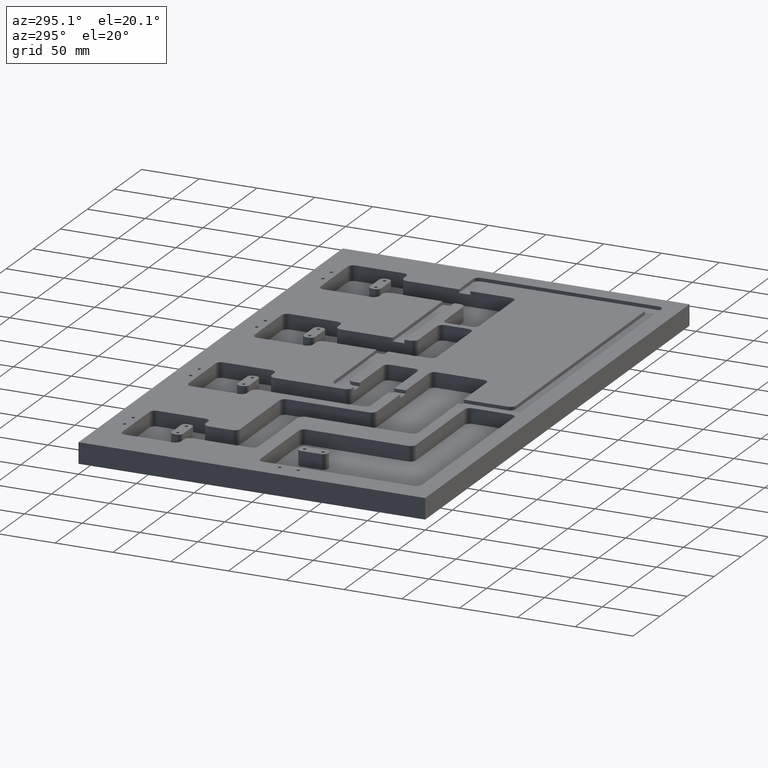
[diagram: clean part render]
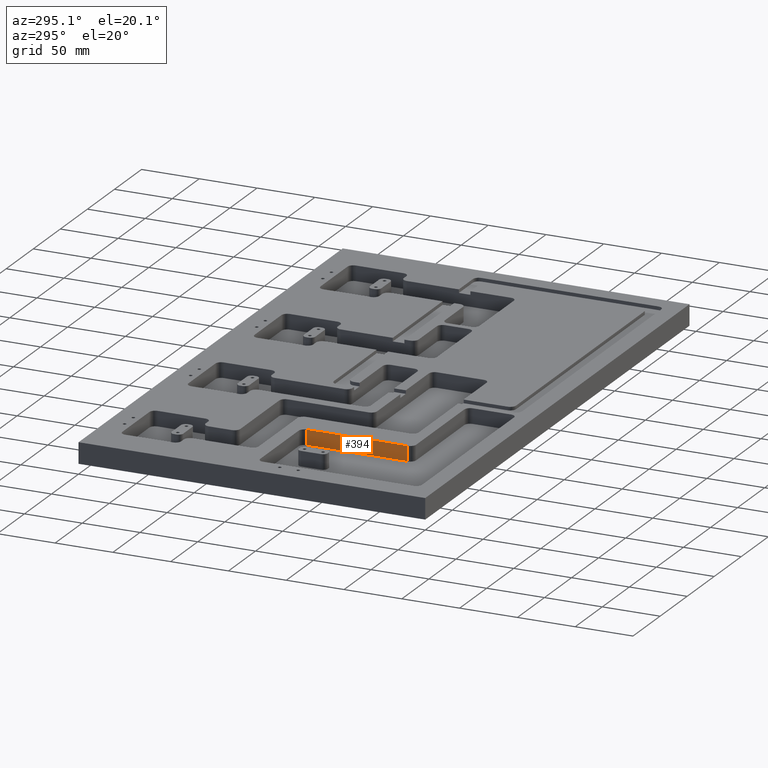
[diagram: same view with one face highlighted and labeled with its STEP entity id]
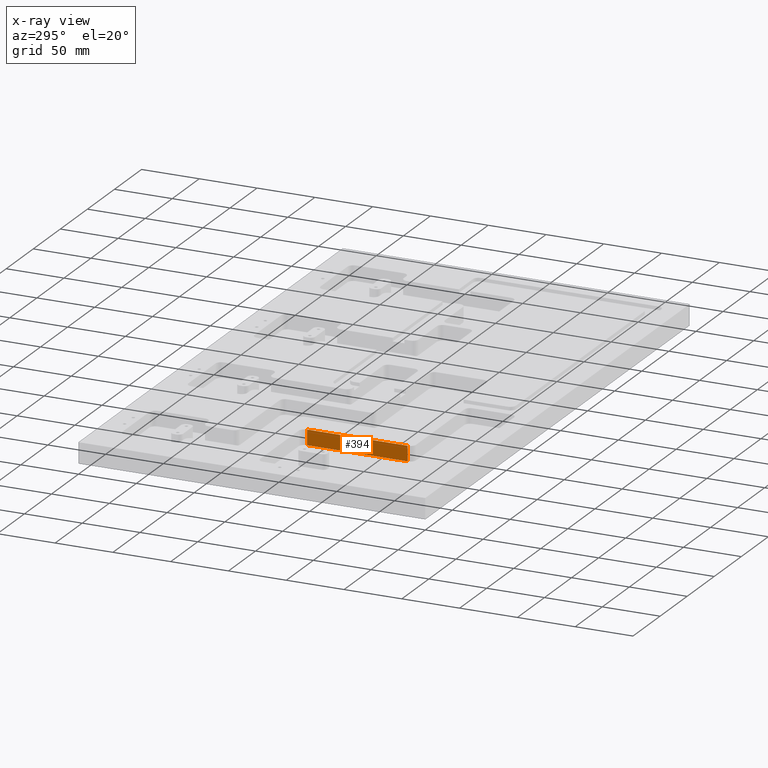
[diagram: x-ray of the same camera — body ghosted, the highlighted face saturated]
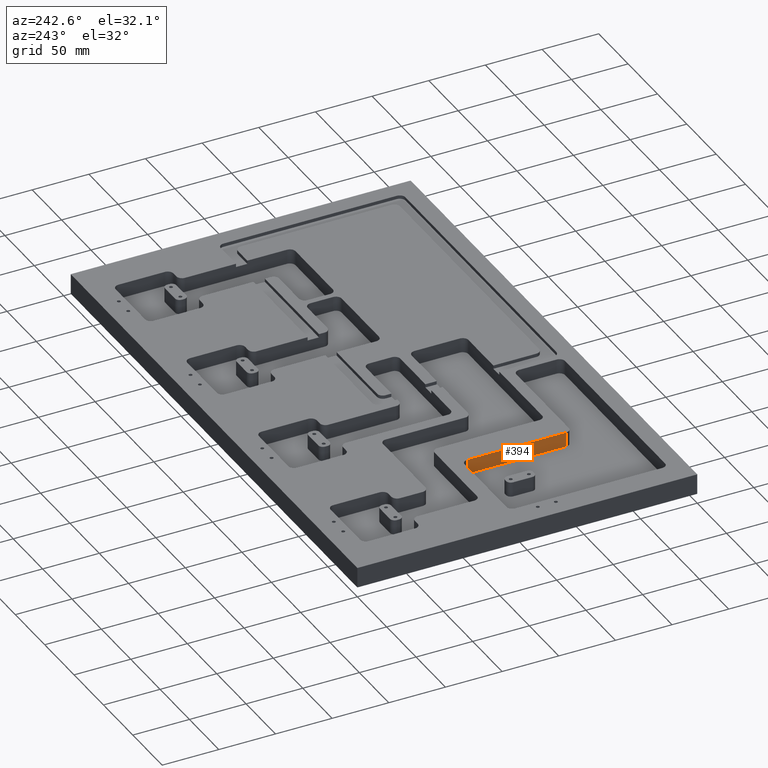
[diagram: same view with one face highlighted and labeled with its STEP entity id]
A machine part, auxiliary view. The second image highlights one B-rep face of the part: STEP entity #394.
The next image is the same camera in x-ray: the body ghosted, the highlighted face saturated — about 0% of this face is hidden behind the body in this view.
A second angle (auxiliary view) of the same face is appended — the face is thin or edge-on in the first view.
In plain terms, the highlighted planar face has unit normal (1, -0, 0).
Its self-contained STEP definition (entity closure, byte-faithful):
#186 = ORIENTED_EDGE ( 'NONE', *, *, #2943, .T. ) ;
#394 = ADVANCED_FACE ( 'NONE', ( #4476 ), #5177, .F. ) ;
#604 = ORIENTED_EDGE ( 'NONE', *, *, #6588, .T. ) ;
#760 = LINE ( 'NONE', #907, #6851 ) ;
#762 = VERTEX_POINT ( 'NONE', #841 ) ;
#841 = CARTESIAN_POINT ( 'NONE',  ( 101.9999999999999300, 62.99999999999994300, 18.00000000000000000 ) ) ;
#874 = EDGE_CURVE ( 'NONE', #6809, #762, #7249, .T. ) ;
#907 = CARTESIAN_POINT ( 'NONE',  ( 101.9999999999999300, 95.00000000000001400, 18.00000000000000000 ) ) ;
#1352 = CARTESIAN_POINT ( 'NONE',  ( 101.9999999999999300, 62.99999999999994300, 4.999999999999999100 ) ) ;
#1481 = EDGE_LOOP ( 'NONE', ( #186, #604, #4989, #2012 ) ) ;
#1538 = VECTOR ( 'NONE', #4512, 1000.000000000000000 ) ;
#1544 = CARTESIAN_POINT ( 'NONE',  ( 101.9999999999999300, 62.99999999999994300, 4.999999999999999100 ) ) ;
#1571 = CARTESIAN_POINT ( 'NONE',  ( 101.9999999999999300, 149.9999999999999700, 18.00000000000000000 ) ) ;
#1698 = VECTOR ( 'NONE', #5904, 1000.000000000000000 ) ;
#1708 = LINE ( 'NONE', #4664, #5186 ) ;
#2012 = ORIENTED_EDGE ( 'NONE', *, *, #874, .T. ) ;
#2369 = DIRECTION ( 'NONE',  ( 0.0000000000000000000, 1.000000000000000000, 0.0000000000000000000 ) ) ;
#2589 = EDGE_CURVE ( 'NONE', #6809, #4159, #1708, .T. ) ;
#2744 = AXIS2_PLACEMENT_3D ( 'NONE', #3386, #5741, #3912 ) ;
#2943 = EDGE_CURVE ( 'NONE', #762, #4686, #760, .T. ) ;
#3386 = CARTESIAN_POINT ( 'NONE',  ( 101.9999999999999300, 95.00000000000001400, 4.999999999999999100 ) ) ;
#3559 = CARTESIAN_POINT ( 'NONE',  ( 101.9999999999999300, 149.9999999999999700, 4.999999999999999100 ) ) ;
#3912 = DIRECTION ( 'NONE',  ( 0.0000000000000000000, 0.0000000000000000000, -1.000000000000000000 ) ) ;
#4159 = VERTEX_POINT ( 'NONE', #6472 ) ;
#4476 = FACE_OUTER_BOUND ( 'NONE', #1481, .T. ) ;
#4512 = DIRECTION ( 'NONE',  ( 0.0000000000000000000, 0.0000000000000000000, 1.000000000000000000 ) ) ;
#4664 = CARTESIAN_POINT ( 'NONE',  ( 101.9999999999999300, 95.00000000000001400, 4.999999999999999100 ) ) ;
#4686 = VERTEX_POINT ( 'NONE', #1571 ) ;
#4989 = ORIENTED_EDGE ( 'NONE', *, *, #2589, .F. ) ;
#5062 = DIRECTION ( 'NONE',  ( 0.0000000000000000000, 1.000000000000000000, 0.0000000000000000000 ) ) ;
#5177 = PLANE ( 'NONE',  #2744 ) ;
#5186 = VECTOR ( 'NONE', #2369, 1000.000000000000000 ) ;
#5741 = DIRECTION ( 'NONE',  ( 1.000000000000000000, -0.0000000000000000000, 0.0000000000000000000 ) ) ;
#5904 = DIRECTION ( 'NONE',  ( 0.0000000000000000000, -0.0000000000000000000, -1.000000000000000000 ) ) ;
#6472 = CARTESIAN_POINT ( 'NONE',  ( 101.9999999999999300, 149.9999999999999700, 4.999999999999999100 ) ) ;
#6588 = EDGE_CURVE ( 'NONE', #4686, #4159, #6839, .T. ) ;
#6809 = VERTEX_POINT ( 'NONE', #1352 ) ;
#6839 = LINE ( 'NONE', #3559, #1698 ) ;
#6851 = VECTOR ( 'NONE', #5062, 1000.000000000000000 ) ;
#7249 = LINE ( 'NONE', #1544, #1538 ) ;